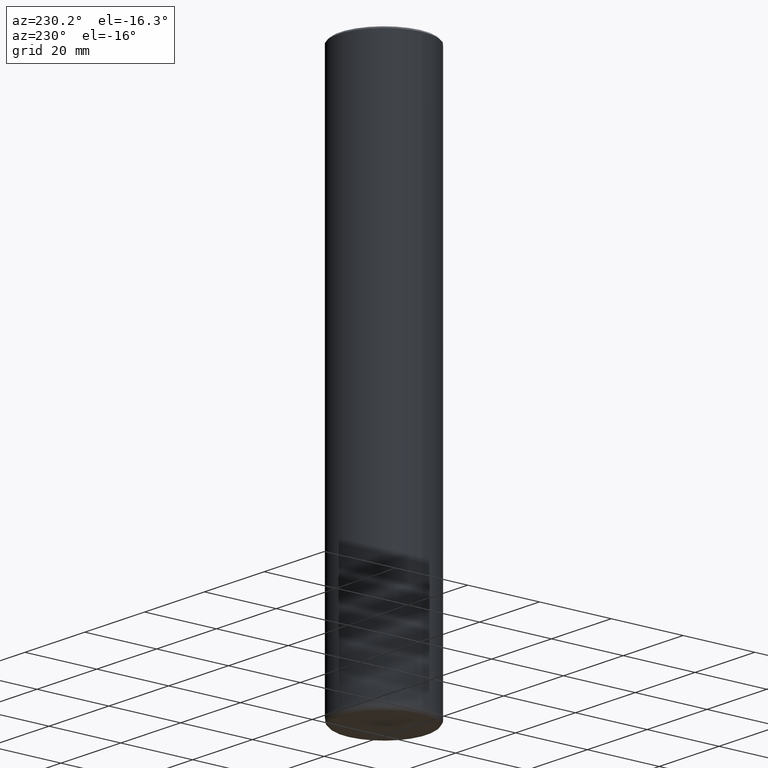
[diagram: clean part render]
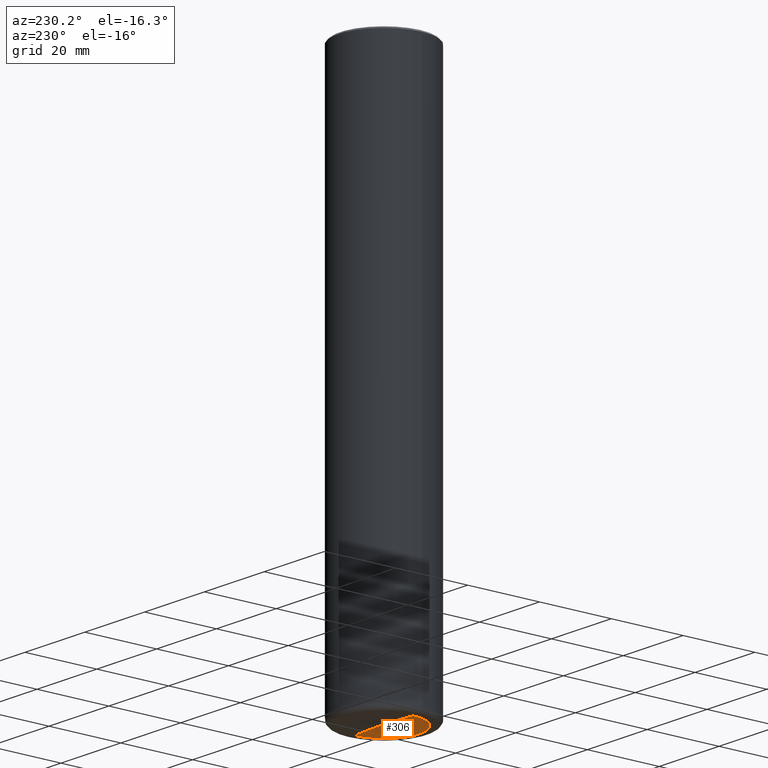
[diagram: same view with one face highlighted and labeled with its STEP entity id]
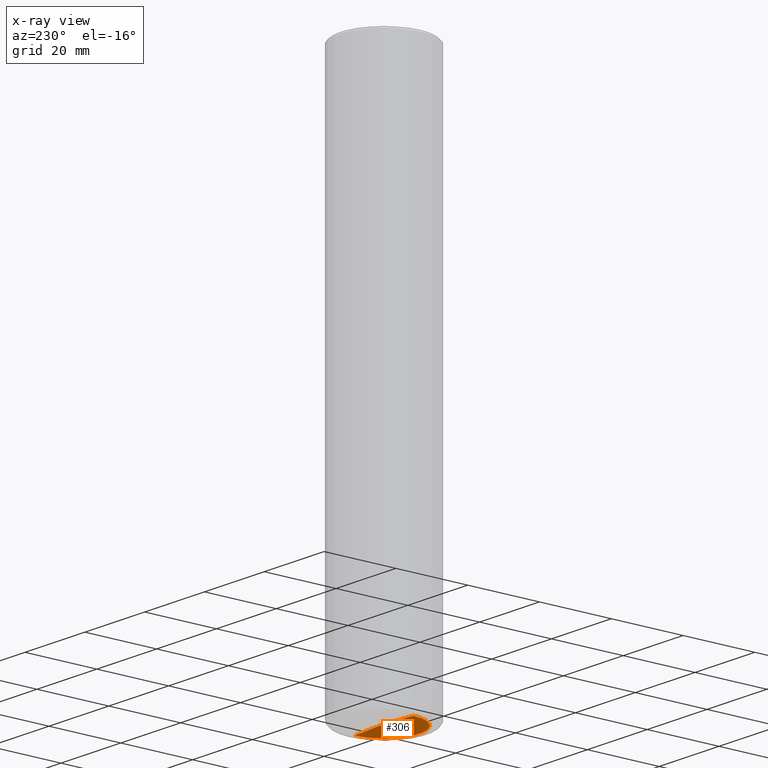
[diagram: x-ray of the same camera — body ghosted, the highlighted face saturated]
A machine part, auxiliary view. The second image highlights one B-rep face of the part: STEP entity #306.
The next image is the same camera in x-ray: the body ghosted, the highlighted face saturated — about 0% of this face is hidden behind the body in this view.
In plain terms, the highlighted conical surface has half-angle 88 deg.
Its self-contained STEP definition (entity closure, byte-faithful):
#2 = EDGE_LOOP ( 'NONE', ( #269, #149, #296 ) ) ;
#3 = CARTESIAN_POINT ( 'NONE',  ( -0.3861464078700981850, -1.825081712988965487E-14, -5.999534596140719600 ) ) ;
#14 = DIRECTION ( 'NONE',  ( 2.445468806185136597E-29, -3.491481338843145583E-15, -1.000000000000000000 ) ) ;
#16 = DIRECTION ( 'NONE',  ( -0.9993908270190957621, 6.856857904024556470E-15, -0.03489949670250108021 ) ) ;
#24 = CARTESIAN_POINT ( 'NONE',  ( 1.463876410420898003E-28, -2.090008845176649569E-14, -5.986050066441421791 ) ) ;
#34 = DIRECTION ( 'NONE',  ( -2.445468806185136597E-29, 3.491481338843145583E-15, 1.000000000000000000 ) ) ;
#44 = VERTEX_POINT ( 'NONE', #24 ) ;
#50 = DIRECTION ( 'NONE',  ( -1.000000000000000000, 6.982962677686269866E-15, 0.000000000000000000 ) ) ;
#70 = EDGE_CURVE ( 'NONE', #44, #265, #129, .T. ) ;
#83 = AXIS2_PLACEMENT_3D ( 'NONE', #291, #34, #446 ) ;
#86 = CARTESIAN_POINT ( 'NONE',  ( 0.3861464078700981850, -2.359641974220864586E-14, -5.999534596140719600 ) ) ;
#89 = CARTESIAN_POINT ( 'NONE',  ( 1.467167470649067006E-28, -2.094726308416916987E-14, -5.999534596140719600 ) ) ;
#111 = VECTOR ( 'NONE', #16, 39.37007874015748143 ) ;
#129 = LINE ( 'NONE', #317, #311 ) ;
#145 = EDGE_CURVE ( 'NONE', #44, #262, #273, .T. ) ;
#149 = ORIENTED_EDGE ( 'NONE', *, *, #70, .T. ) ;
#193 = FACE_OUTER_BOUND ( 'NONE', #2, .T. ) ;
#210 = AXIS2_PLACEMENT_3D ( 'NONE', #89, #14, #50 ) ;
#262 = VERTEX_POINT ( 'NONE', #3 ) ;
#265 = VERTEX_POINT ( 'NONE', #86 ) ;
#269 = ORIENTED_EDGE ( 'NONE', *, *, #145, .F. ) ;
#273 = LINE ( 'NONE', #356, #111 ) ;
#280 = DIRECTION ( 'NONE',  ( 0.9993908270190957621, -6.978169709227541488E-15, -0.03489949670250108021 ) ) ;
#291 = CARTESIAN_POINT ( 'NONE',  ( 1.467167470649067006E-28, -2.094726308416916987E-14, -5.999534596140719600 ) ) ;
#292 = CONICAL_SURFACE ( 'NONE', #210, 0.3861464078700981850, 1.535889741755009918 ) ;
#296 = ORIENTED_EDGE ( 'NONE', *, *, #405, .F. ) ;
#306 = ADVANCED_FACE ( 'NONE', ( #193 ), #292, .F. ) ;
#311 = VECTOR ( 'NONE', #280, 39.37007874015748143 ) ;
#317 = CARTESIAN_POINT ( 'NONE',  ( 0.3861464078700981850, -2.359641974220864586E-14, -5.999534596140719600 ) ) ;
#356 = CARTESIAN_POINT ( 'NONE',  ( -0.3861464078700981850, -1.825081712988965487E-14, -5.999534596140719600 ) ) ;
#405 = EDGE_CURVE ( 'NONE', #262, #265, #448, .T. ) ;
#446 = DIRECTION ( 'NONE',  ( 1.000000000000000000, -6.982962677686269866E-15, 0.000000000000000000 ) ) ;
#448 = CIRCLE ( 'NONE', #83, 0.3861464078700981850 ) ;